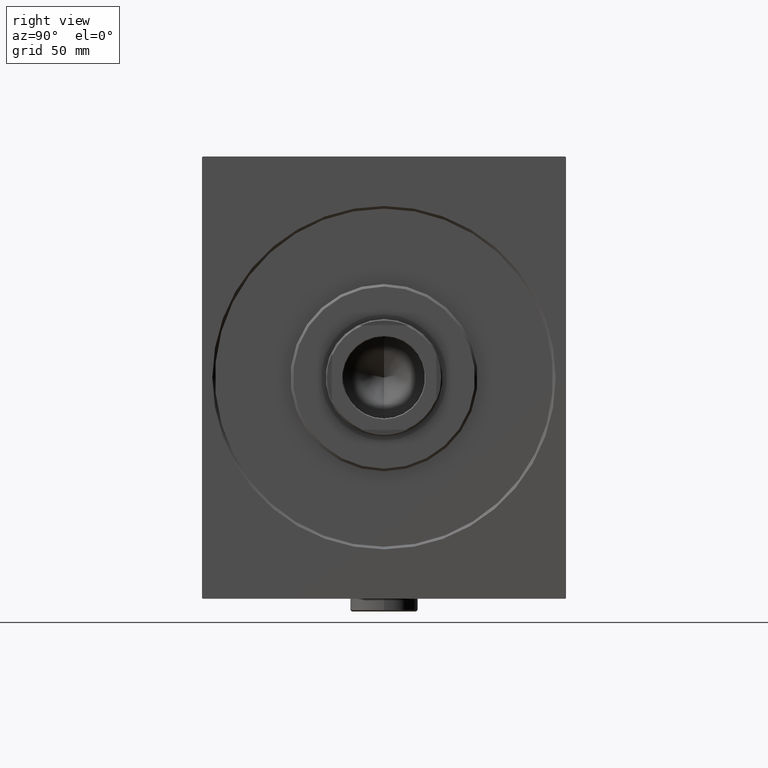
[diagram: clean part render]
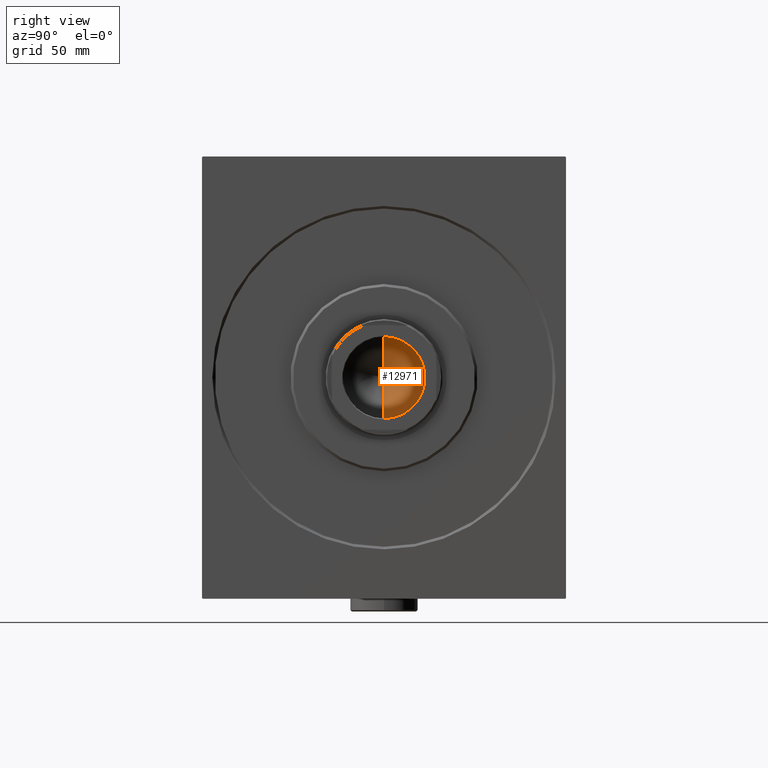
[diagram: same view with one face highlighted and labeled with its STEP entity id]
A machine part, right view. The second image highlights one B-rep face of the part: STEP entity #12971.
In plain terms, the highlighted conical surface has half-angle 59 deg.
Its self-contained STEP definition (entity closure, byte-faithful):
#2004 = DIRECTION ( 'NONE',  ( 1.000000000000000000, 0.000000000000000000, 0.000000000000000000 ) ) ;
#5208 = AXIS2_PLACEMENT_3D ( 'NONE', #29873, #43447, #2004 ) ;
#7907 = DIRECTION ( 'NONE',  ( -0.000000000000000000, -0.000000000000000000, 1.000000000000000000 ) ) ;
#8381 = CARTESIAN_POINT ( 'NONE',  ( -1.199718644317817648E-14, 0.000000000000000000, 96.53644525031593560 ) ) ;
#9323 = LINE ( 'NONE', #20631, #35472 ) ;
#10964 = VERTEX_POINT ( 'NONE', #14205 ) ;
#12971 = ADVANCED_FACE ( 'NONE', ( #32773 ), #25864, .F. ) ;
#13576 = VERTEX_POINT ( 'NONE', #8381 ) ;
#13839 = EDGE_LOOP ( 'NONE', ( #15855, #28835, #35819 ) ) ;
#14205 = CARTESIAN_POINT ( 'NONE',  ( 15.74999999999999289, 0.000000000000000000, 106.0000000000000142 ) ) ;
#15855 = ORIENTED_EDGE ( 'NONE', *, *, #25687, .F. ) ;
#18374 = CIRCLE ( 'NONE', #32007, 15.74999999999999289 ) ;
#19713 = VECTOR ( 'NONE', #30965, 1000.000000000000000 ) ;
#20617 = DIRECTION ( 'NONE',  ( 1.000000000000000000, 0.000000000000000000, 0.000000000000000000 ) ) ;
#20631 = CARTESIAN_POINT ( 'NONE',  ( 15.74999999999999289, 0.000000000000000000, 106.0000000000000142 ) ) ;
#22076 = VERTEX_POINT ( 'NONE', #25458 ) ;
#25458 = CARTESIAN_POINT ( 'NONE',  ( -15.74999999999999289, 1.928818708657080556E-15, 106.0000000000000142 ) ) ;
#25687 = EDGE_CURVE ( 'NONE', #13576, #22076, #26971, .T. ) ;
#25864 = CONICAL_SURFACE ( 'NONE', #5208, 15.74999999999999289, 1.029744258676653867 ) ;
#26971 = LINE ( 'NONE', #40551, #19713 ) ;
#27698 = EDGE_CURVE ( 'NONE', #13576, #10964, #9323, .T. ) ;
#28835 = ORIENTED_EDGE ( 'NONE', *, *, #27698, .T. ) ;
#29873 = CARTESIAN_POINT ( 'NONE',  ( 0.000000000000000000, 0.000000000000000000, 106.0000000000000142 ) ) ;
#30965 = DIRECTION ( 'NONE',  ( -0.8571673007021120005, 1.049727191138618326E-16, 0.5150380749100547106 ) ) ;
#32007 = AXIS2_PLACEMENT_3D ( 'NONE', #37559, #7907, #20617 ) ;
#32773 = FACE_OUTER_BOUND ( 'NONE', #13839, .T. ) ;
#35472 = VECTOR ( 'NONE', #37789, 1000.000000000000000 ) ;
#35819 = ORIENTED_EDGE ( 'NONE', *, *, #40904, .T. ) ;
#37559 = CARTESIAN_POINT ( 'NONE',  ( 0.000000000000000000, 0.000000000000000000, 106.0000000000000142 ) ) ;
#37789 = DIRECTION ( 'NONE',  ( 0.8571673007021120005, 0.000000000000000000, 0.5150380749100547106 ) ) ;
#40551 = CARTESIAN_POINT ( 'NONE',  ( -15.74999999999999289, 1.928818708657080556E-15, 106.0000000000000142 ) ) ;
#40904 = EDGE_CURVE ( 'NONE', #10964, #22076, #18374, .T. ) ;
#43447 = DIRECTION ( 'NONE',  ( -0.000000000000000000, -0.000000000000000000, 1.000000000000000000 ) ) ;